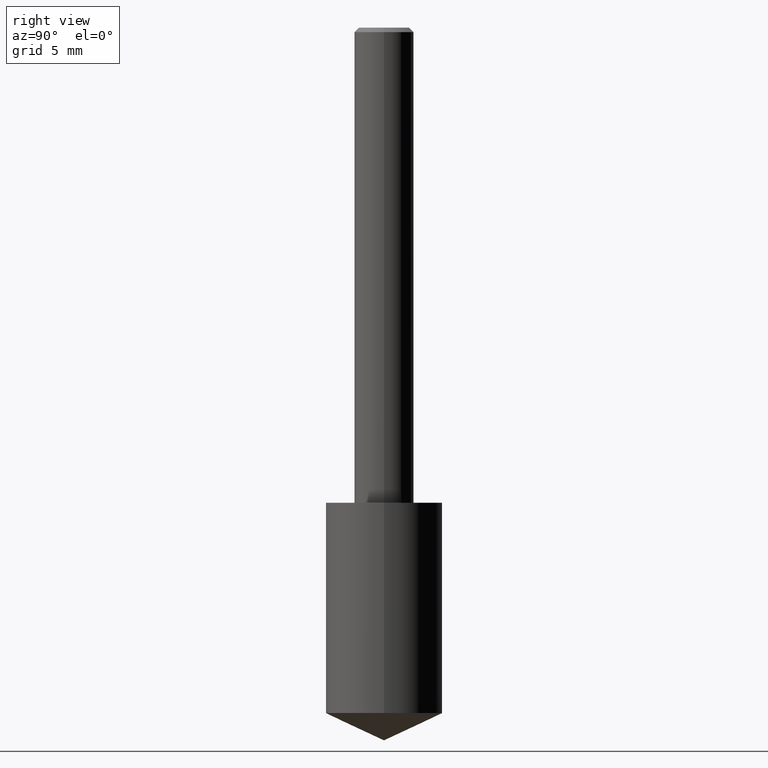
[diagram: clean part render]
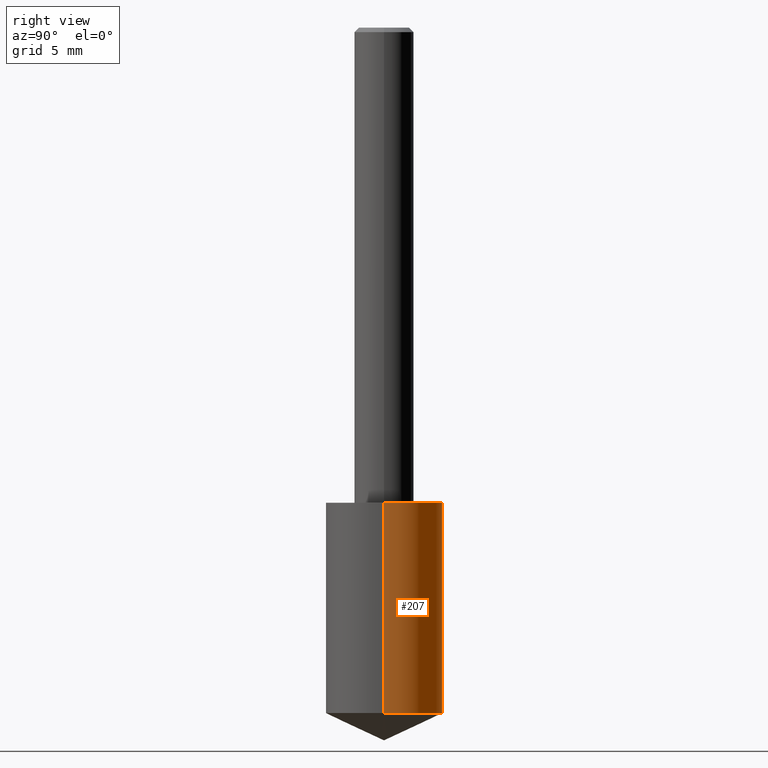
[diagram: same view with one face highlighted and labeled with its STEP entity id]
A machine part, right view. The second image highlights one B-rep face of the part: STEP entity #207.
In plain terms, the highlighted cylindrical surface (partial cylindrical patch) has radius 3.1255 mm, axis along (-0, 0, 1).
Its self-contained STEP definition (entity closure, byte-faithful):
#33 = VECTOR ( 'NONE', #256, 39.37007874015748143 ) ;
#42 = CARTESIAN_POINT ( 'NONE',  ( 0.1230500000000000066, -4.350734896332441588E-15, -1.000000000000000222 ) ) ;
#44 = VECTOR ( 'NONE', #84, 39.37007874015748143 ) ;
#47 = EDGE_CURVE ( 'NONE', #130, #132, #192, .T. ) ;
#49 = CARTESIAN_POINT ( 'NONE',  ( 3.527884269887395579E-29, -5.036883751187626177E-15, -1.442620842664027681 ) ) ;
#73 = DIRECTION ( 'NONE',  ( -2.445468806185136597E-29, 3.491481338843145583E-15, 1.000000000000000000 ) ) ;
#76 = ORIENTED_EDGE ( 'NONE', *, *, #128, .T. ) ;
#81 = DIRECTION ( 'NONE',  ( 1.000000000000000000, -6.982962677686263555E-15, 0.000000000000000000 ) ) ;
#84 = DIRECTION ( 'NONE',  ( -2.445468806185136877E-29, 3.491481338843145188E-15, 1.000000000000000000 ) ) ;
#100 = AXIS2_PLACEMENT_3D ( 'NONE', #284, #294, #185 ) ;
#104 = DIRECTION ( 'NONE',  ( -2.445468806185136597E-29, 3.491481338843145583E-15, 1.000000000000000000 ) ) ;
#106 = ORIENTED_EDGE ( 'NONE', *, *, #47, .F. ) ;
#121 = CARTESIAN_POINT ( 'NONE',  ( -0.1230500000000000066, -2.617158502490343145E-15, -1.000000000000000222 ) ) ;
#128 = EDGE_CURVE ( 'NONE', #162, #163, #148, .T. ) ;
#130 = VERTEX_POINT ( 'NONE', #226 ) ;
#132 = VERTEX_POINT ( 'NONE', #155 ) ;
#148 = LINE ( 'NONE', #121, #33 ) ;
#155 = CARTESIAN_POINT ( 'NONE',  ( 0.1230500000000000066, -4.350734896332440799E-15, -1.000000000000000222 ) ) ;
#162 = VERTEX_POINT ( 'NONE', #198 ) ;
#163 = VERTEX_POINT ( 'NONE', #278 ) ;
#164 = CIRCLE ( 'NONE', #100, 0.1230500000000000066 ) ;
#185 = DIRECTION ( 'NONE',  ( 1.000000000000000000, -6.982962677686263555E-15, 0.000000000000000000 ) ) ;
#190 = AXIS2_PLACEMENT_3D ( 'NONE', #49, #104, #81 ) ;
#192 = LINE ( 'NONE', #42, #44 ) ;
#198 = CARTESIAN_POINT ( 'NONE',  ( -0.1230500000000000344, -4.162560914834822950E-15, -1.442620842664027681 ) ) ;
#202 = FACE_OUTER_BOUND ( 'NONE', #313, .T. ) ;
#207 = ADVANCED_FACE ( 'NONE', ( #202 ), #310, .T. ) ;
#220 = EDGE_CURVE ( 'NONE', #132, #163, #164, .T. ) ;
#226 = CARTESIAN_POINT ( 'NONE',  ( 0.1230500000000000344, -5.896137308676920999E-15, -1.442620842664027681 ) ) ;
#230 = EDGE_CURVE ( 'NONE', #130, #162, #298, .T. ) ;
#255 = AXIS2_PLACEMENT_3D ( 'NONE', #334, #73, #320 ) ;
#256 = DIRECTION ( 'NONE',  ( -2.445468806185136877E-29, 3.491481338843145188E-15, 1.000000000000000000 ) ) ;
#278 = CARTESIAN_POINT ( 'NONE',  ( -0.1230500000000000066, -3.389859708662582850E-15, -1.000000000000000222 ) ) ;
#284 = CARTESIAN_POINT ( 'NONE',  ( 2.445468806185136877E-29, -3.491481338843145977E-15, -1.000000000000000222 ) ) ;
#291 = ORIENTED_EDGE ( 'NONE', *, *, #220, .F. ) ;
#294 = DIRECTION ( 'NONE',  ( -2.445468806185136597E-29, 3.491481338843145583E-15, 1.000000000000000000 ) ) ;
#298 = CIRCLE ( 'NONE', #190, 0.1230500000000000066 ) ;
#310 = CYLINDRICAL_SURFACE ( 'NONE', #255, 0.1230500000000000066 ) ;
#313 = EDGE_LOOP ( 'NONE', ( #340, #76, #291, #106 ) ) ;
#320 = DIRECTION ( 'NONE',  ( 1.000000000000000000, -6.982962677686268288E-15, 0.000000000000000000 ) ) ;
#334 = CARTESIAN_POINT ( 'NONE',  ( 2.445468806185137438E-29, -3.491481338843146371E-15, -1.000000000000000222 ) ) ;
#340 = ORIENTED_EDGE ( 'NONE', *, *, #230, .T. ) ;